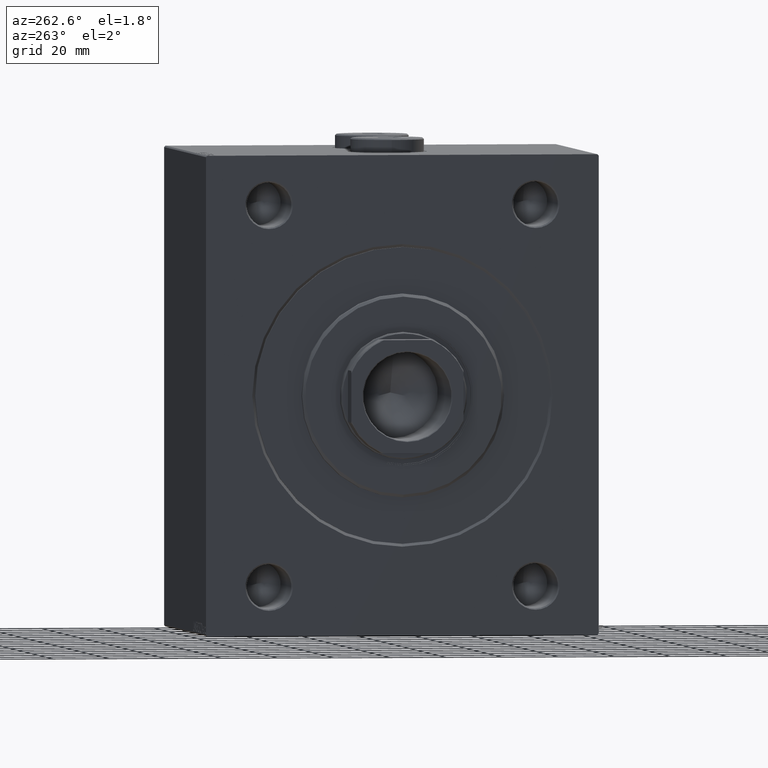
[diagram: clean part render]
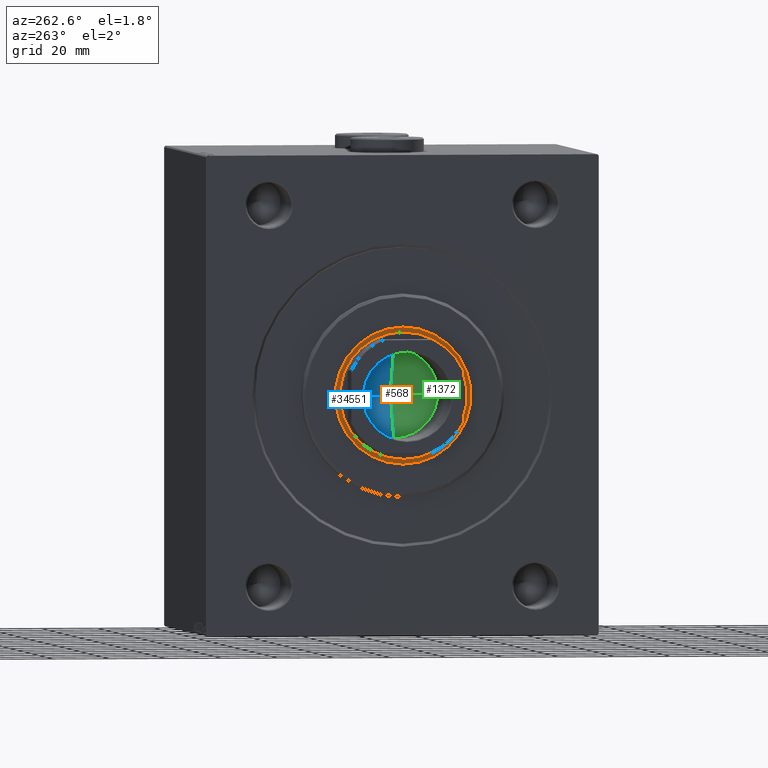
[diagram: same view with three faces highlighted in distinct colors, each labeled with its STEP entity id]
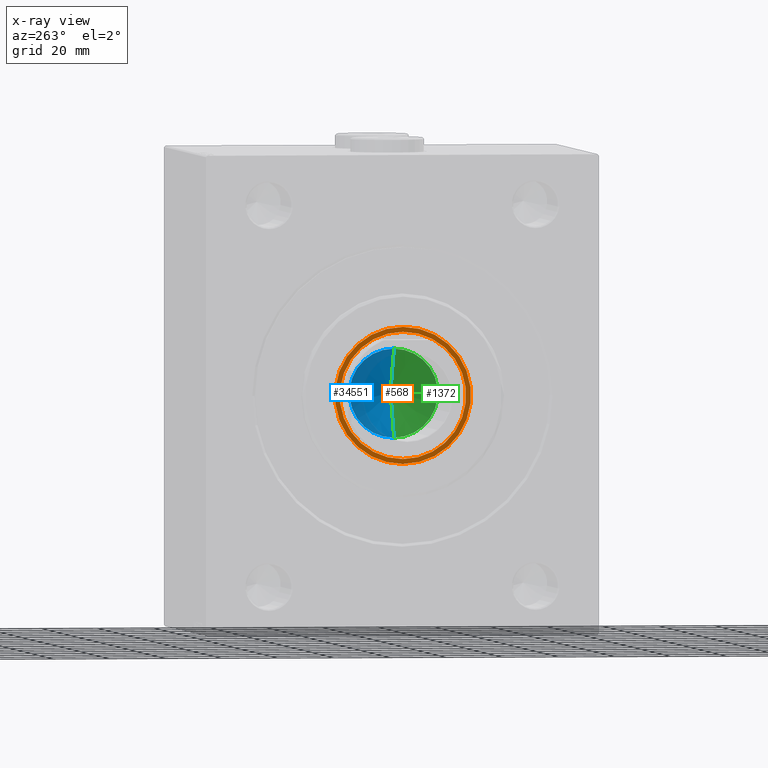
[diagram: x-ray of the same camera — body ghosted, the three highlighted faces saturated]
A machine part, auxiliary view with three faces highlighted in distinct colors.
The next image is the same camera in x-ray (body ghosted, the three faces saturated) — at least one of them is partly hidden behind the body in this view.
Their STEP definitions:

[orange] entity #568 — the highlighted planar face has unit normal (-1, 0, 0).
#568 = ADVANCED_FACE ( 'NONE', ( #10633, #17774 ), #3519, .T. ) ;
#759 = EDGE_LOOP ( 'NONE', ( #45477, #41255 ) ) ;
#1517 = AXIS2_PLACEMENT_3D ( 'NONE', #5118, #33183, #1670 ) ;
#1670 = DIRECTION ( 'NONE',  ( 0.000000000000000000, 0.000000000000000000, -1.000000000000000000 ) ) ;
#3519 = PLANE ( 'NONE',  #10865 ) ;
#5118 = CARTESIAN_POINT ( 'NONE',  ( 1.500000000000001332, 0.000000000000000000, 0.000000000000000000 ) ) ;
#5242 = CIRCLE ( 'NONE', #19931, 24.25000000000000000 ) ;
#5555 = ORIENTED_EDGE ( 'NONE', *, *, #10054, .T. ) ;
#9569 = AXIS2_PLACEMENT_3D ( 'NONE', #43665, #20614, #17165 ) ;
#10054 = EDGE_CURVE ( 'NONE', #28693, #29282, #25719, .T. ) ;
#10203 = DIRECTION ( 'NONE',  ( 0.000000000000000000, 0.000000000000000000, -1.000000000000000000 ) ) ;
#10633 = FACE_BOUND ( 'NONE', #759, .T. ) ;
#10700 = AXIS2_PLACEMENT_3D ( 'NONE', #26855, #40902, #23855 ) ;
#10865 = AXIS2_PLACEMENT_3D ( 'NONE', #17551, #42397, #10203 ) ;
#11300 = EDGE_CURVE ( 'NONE', #22196, #22692, #38214, .T. ) ;
#12063 = CARTESIAN_POINT ( 'NONE',  ( 1.500000000000001332, 0.000000000000000000, -22.50000000000000355 ) ) ;
#14361 = EDGE_CURVE ( 'NONE', #29282, #28693, #5242, .T. ) ;
#14792 = CARTESIAN_POINT ( 'NONE',  ( 1.500000000000000000, 0.000000000000000000, 24.25000000000000000 ) ) ;
#17165 = DIRECTION ( 'NONE',  ( 0.000000000000000000, 0.000000000000000000, -1.000000000000000000 ) ) ;
#17551 = CARTESIAN_POINT ( 'NONE',  ( 1.500000000000000000, 0.000000000000000000, 0.000000000000000000 ) ) ;
#17774 = FACE_OUTER_BOUND ( 'NONE', #31659, .T. ) ;
#18131 = DIRECTION ( 'NONE',  ( 0.000000000000000000, 0.000000000000000000, -1.000000000000000000 ) ) ;
#19931 = AXIS2_PLACEMENT_3D ( 'NONE', #32152, #21566, #18131 ) ;
#20614 = DIRECTION ( 'NONE',  ( 1.000000000000000000, 0.000000000000000000, 0.000000000000000000 ) ) ;
#21566 = DIRECTION ( 'NONE',  ( 1.000000000000000000, 0.000000000000000000, 0.000000000000000000 ) ) ;
#22196 = VERTEX_POINT ( 'NONE', #12063 ) ;
#22692 = VERTEX_POINT ( 'NONE', #40912 ) ;
#23855 = DIRECTION ( 'NONE',  ( 0.000000000000000000, 0.000000000000000000, -1.000000000000000000 ) ) ;
#25719 = CIRCLE ( 'NONE', #9569, 24.25000000000000000 ) ;
#26855 = CARTESIAN_POINT ( 'NONE',  ( 1.500000000000001332, 0.000000000000000000, 0.000000000000000000 ) ) ;
#28693 = VERTEX_POINT ( 'NONE', #14792 ) ;
#29282 = VERTEX_POINT ( 'NONE', #37613 ) ;
#31659 = EDGE_LOOP ( 'NONE', ( #5555, #34141 ) ) ;
#32093 = EDGE_CURVE ( 'NONE', #22692, #22196, #36419, .T. ) ;
#32152 = CARTESIAN_POINT ( 'NONE',  ( 1.500000000000000000, 0.000000000000000000, 0.000000000000000000 ) ) ;
#33183 = DIRECTION ( 'NONE',  ( 1.000000000000000000, 0.000000000000000000, 0.000000000000000000 ) ) ;
#34141 = ORIENTED_EDGE ( 'NONE', *, *, #14361, .T. ) ;
#36419 = CIRCLE ( 'NONE', #10700, 22.50000000000000355 ) ;
#37613 = CARTESIAN_POINT ( 'NONE',  ( 1.500000000000000000, 2.969768487932331287E-15, -24.25000000000000000 ) ) ;
#38214 = CIRCLE ( 'NONE', #1517, 22.50000000000000355 ) ;
#40902 = DIRECTION ( 'NONE',  ( 1.000000000000000000, 0.000000000000000000, 0.000000000000000000 ) ) ;
#40912 = CARTESIAN_POINT ( 'NONE',  ( 1.500000000000001332, 2.755455298081545172E-15, 22.50000000000000355 ) ) ;
#41255 = ORIENTED_EDGE ( 'NONE', *, *, #32093, .F. ) ;
#42397 = DIRECTION ( 'NONE',  ( 1.000000000000000000, 0.000000000000000000, 0.000000000000000000 ) ) ;
#43665 = CARTESIAN_POINT ( 'NONE',  ( 1.500000000000000000, 0.000000000000000000, 0.000000000000000000 ) ) ;
#45477 = ORIENTED_EDGE ( 'NONE', *, *, #11300, .F. ) ;

[blue] entity #34551 — the highlighted conical surface has half-angle 59 deg.
#453 = CARTESIAN_POINT ( 'NONE',  ( -15.74999999999999289, 1.928818708657080556E-15, 26.99999999999998934 ) ) ;
#700 = VERTEX_POINT ( 'NONE', #36394 ) ;
#1725 = VECTOR ( 'NONE', #19751, 1000.000000000000000 ) ;
#5418 = CARTESIAN_POINT ( 'NONE',  ( 0.000000000000000000, 0.000000000000000000, 26.99999999999998934 ) ) ;
#6901 = LINE ( 'NONE', #453, #21573 ) ;
#7774 = DIRECTION ( 'NONE',  ( 1.000000000000000000, 0.000000000000000000, 0.000000000000000000 ) ) ;
#8465 = CARTESIAN_POINT ( 'NONE',  ( -15.74999999999999289, 1.928818708657080556E-15, 26.99999999999998934 ) ) ;
#10669 = EDGE_CURVE ( 'NONE', #700, #11659, #41873, .T. ) ;
#11217 = DIRECTION ( 'NONE',  ( -0.000000000000000000, -0.000000000000000000, 1.000000000000000000 ) ) ;
#11659 = VERTEX_POINT ( 'NONE', #8465 ) ;
#14677 = CARTESIAN_POINT ( 'NONE',  ( 0.000000000000000000, 0.000000000000000000, 26.99999999999998934 ) ) ;
#14992 = LINE ( 'NONE', #25345, #1725 ) ;
#15665 = CONICAL_SURFACE ( 'NONE', #26691, 15.74999999999999289, 1.029744258676653645 ) ;
#17192 = ORIENTED_EDGE ( 'NONE', *, *, #24220, .F. ) ;
#18339 = ORIENTED_EDGE ( 'NONE', *, *, #23131, .T. ) ;
#19751 = DIRECTION ( 'NONE',  ( 0.8571673007021118895, 0.000000000000000000, 0.5150380749100549327 ) ) ;
#19965 = VERTEX_POINT ( 'NONE', #34462 ) ;
#21506 = EDGE_LOOP ( 'NONE', ( #17192, #18339, #34464 ) ) ;
#21573 = VECTOR ( 'NONE', #34523, 1000.000000000000000 ) ;
#22038 = AXIS2_PLACEMENT_3D ( 'NONE', #14677, #11217, #7774 ) ;
#22902 = DIRECTION ( 'NONE',  ( 1.000000000000000000, 0.000000000000000000, 0.000000000000000000 ) ) ;
#23131 = EDGE_CURVE ( 'NONE', #19965, #700, #14992, .T. ) ;
#24220 = EDGE_CURVE ( 'NONE', #19965, #11659, #6901, .T. ) ;
#25345 = CARTESIAN_POINT ( 'NONE',  ( 15.74999999999999289, 0.000000000000000000, 26.99999999999998934 ) ) ;
#26691 = AXIS2_PLACEMENT_3D ( 'NONE', #5418, #30257, #22902 ) ;
#30257 = DIRECTION ( 'NONE',  ( -0.000000000000000000, -0.000000000000000000, 1.000000000000000000 ) ) ;
#33712 = FACE_OUTER_BOUND ( 'NONE', #21506, .T. ) ;
#34462 = CARTESIAN_POINT ( 'NONE',  ( -1.199718644317817648E-14, 0.000000000000000000, 17.53644525031590362 ) ) ;
#34464 = ORIENTED_EDGE ( 'NONE', *, *, #10669, .T. ) ;
#34523 = DIRECTION ( 'NONE',  ( -0.8571673007021118895, 1.049727191138618079E-16, 0.5150380749100549327 ) ) ;
#34551 = ADVANCED_FACE ( 'NONE', ( #33712 ), #15665, .F. ) ;
#36394 = CARTESIAN_POINT ( 'NONE',  ( 15.74999999999999289, 0.000000000000000000, 26.99999999999998934 ) ) ;
#41873 = CIRCLE ( 'NONE', #22038, 15.74999999999999289 ) ;

[green] entity #1372 — the highlighted conical surface has half-angle 59 deg.
#146 = ORIENTED_EDGE ( 'NONE', *, *, #24220, .T. ) ;
#453 = CARTESIAN_POINT ( 'NONE',  ( -15.74999999999999289, 1.928818708657080556E-15, 26.99999999999998934 ) ) ;
#700 = VERTEX_POINT ( 'NONE', #36394 ) ;
#1372 = ADVANCED_FACE ( 'NONE', ( #9689 ), #6473, .F. ) ;
#1725 = VECTOR ( 'NONE', #19751, 1000.000000000000000 ) ;
#3869 = ORIENTED_EDGE ( 'NONE', *, *, #23131, .F. ) ;
#6453 = DIRECTION ( 'NONE',  ( -0.000000000000000000, -0.000000000000000000, 1.000000000000000000 ) ) ;
#6473 = CONICAL_SURFACE ( 'NONE', #15315, 15.74999999999999289, 1.029744258676653645 ) ;
#6901 = LINE ( 'NONE', #453, #21573 ) ;
#8465 = CARTESIAN_POINT ( 'NONE',  ( -15.74999999999999289, 1.928818708657080556E-15, 26.99999999999998934 ) ) ;
#9689 = FACE_OUTER_BOUND ( 'NONE', #29654, .T. ) ;
#11659 = VERTEX_POINT ( 'NONE', #8465 ) ;
#13506 = CIRCLE ( 'NONE', #39217, 15.74999999999999289 ) ;
#14839 = ORIENTED_EDGE ( 'NONE', *, *, #23635, .T. ) ;
#14992 = LINE ( 'NONE', #25345, #1725 ) ;
#15315 = AXIS2_PLACEMENT_3D ( 'NONE', #20700, #6453, #20483 ) ;
#19751 = DIRECTION ( 'NONE',  ( 0.8571673007021118895, 0.000000000000000000, 0.5150380749100549327 ) ) ;
#19965 = VERTEX_POINT ( 'NONE', #34462 ) ;
#20483 = DIRECTION ( 'NONE',  ( 1.000000000000000000, 0.000000000000000000, 0.000000000000000000 ) ) ;
#20700 = CARTESIAN_POINT ( 'NONE',  ( 0.000000000000000000, 0.000000000000000000, 26.99999999999998934 ) ) ;
#21573 = VECTOR ( 'NONE', #34523, 1000.000000000000000 ) ;
#23131 = EDGE_CURVE ( 'NONE', #19965, #700, #14992, .T. ) ;
#23635 = EDGE_CURVE ( 'NONE', #11659, #700, #13506, .T. ) ;
#24220 = EDGE_CURVE ( 'NONE', #19965, #11659, #6901, .T. ) ;
#24714 = DIRECTION ( 'NONE',  ( -0.000000000000000000, -0.000000000000000000, 1.000000000000000000 ) ) ;
#25345 = CARTESIAN_POINT ( 'NONE',  ( 15.74999999999999289, 0.000000000000000000, 26.99999999999998934 ) ) ;
#28391 = CARTESIAN_POINT ( 'NONE',  ( 0.000000000000000000, 0.000000000000000000, 26.99999999999998934 ) ) ;
#29654 = EDGE_LOOP ( 'NONE', ( #3869, #146, #14839 ) ) ;
#31617 = DIRECTION ( 'NONE',  ( 1.000000000000000000, 0.000000000000000000, 0.000000000000000000 ) ) ;
#34462 = CARTESIAN_POINT ( 'NONE',  ( -1.199718644317817648E-14, 0.000000000000000000, 17.53644525031590362 ) ) ;
#34523 = DIRECTION ( 'NONE',  ( -0.8571673007021118895, 1.049727191138618079E-16, 0.5150380749100549327 ) ) ;
#36394 = CARTESIAN_POINT ( 'NONE',  ( 15.74999999999999289, 0.000000000000000000, 26.99999999999998934 ) ) ;
#39217 = AXIS2_PLACEMENT_3D ( 'NONE', #28391, #24714, #31617 ) ;